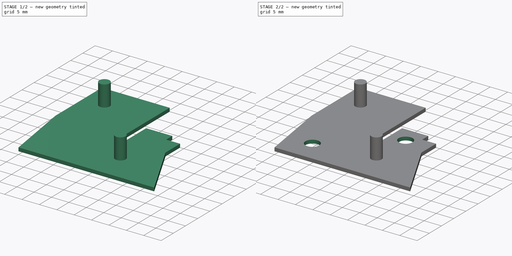
[diagram: build sequence overview — one tinted view per stage of 2, left to right]
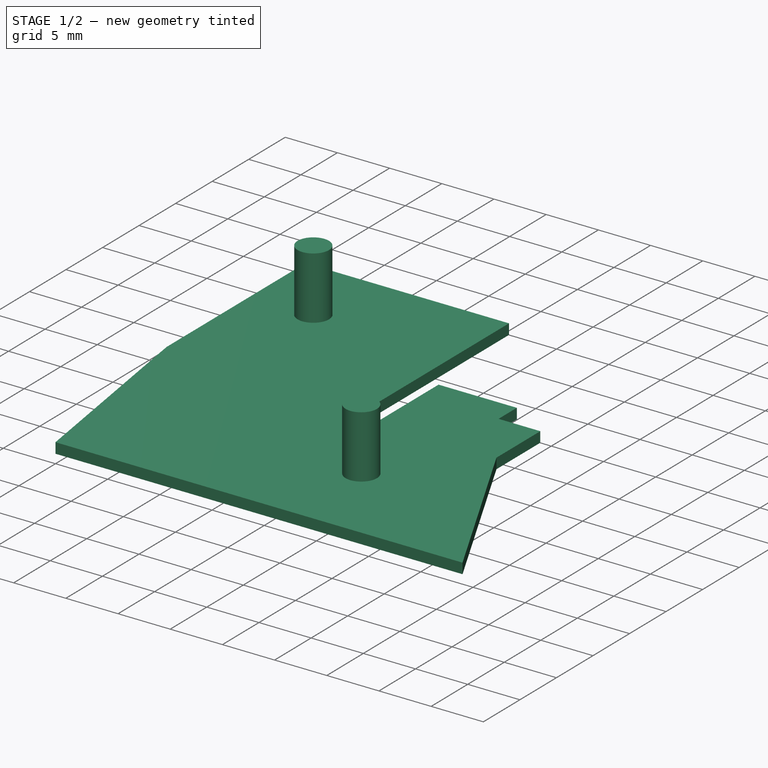
[diagram: stage 1 of 2 — iso view after this stage's code; geometry added in this stage tinted green]
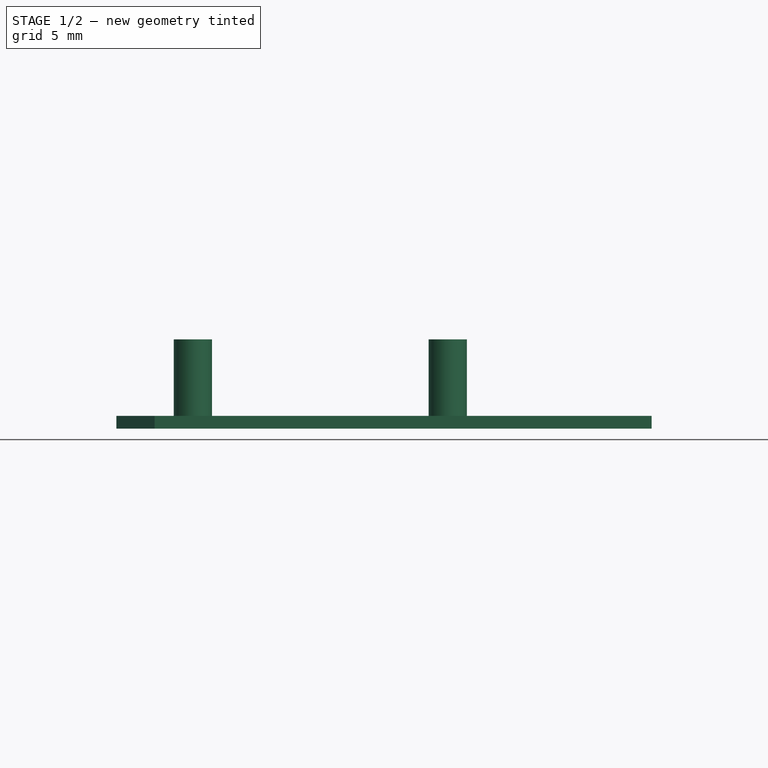
[diagram: stage 1 of 2 — front view after this stage's code; geometry added in this stage tinted green]
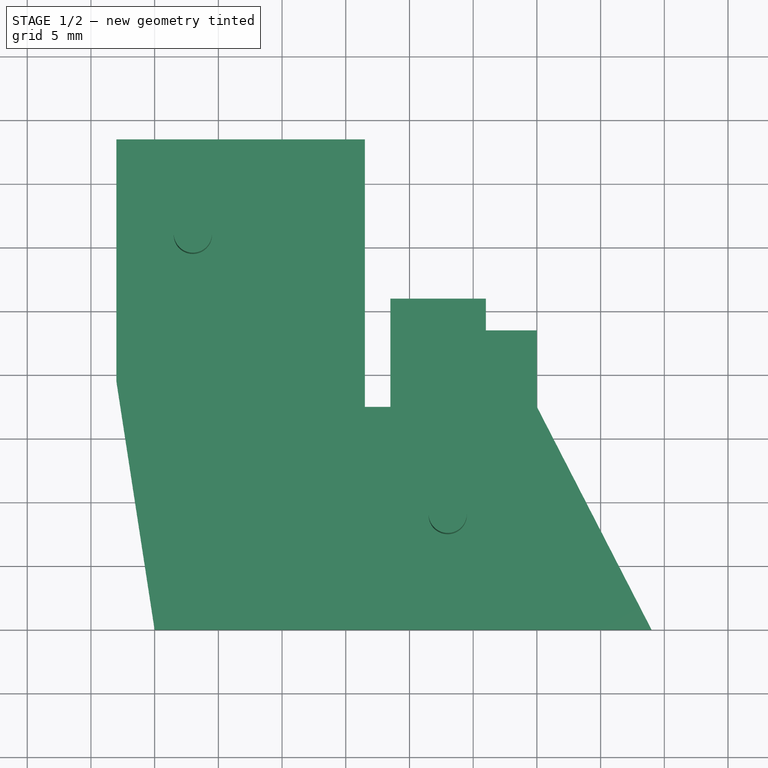
[diagram: stage 1 of 2 — top view after this stage's code; geometry added in this stage tinted green]
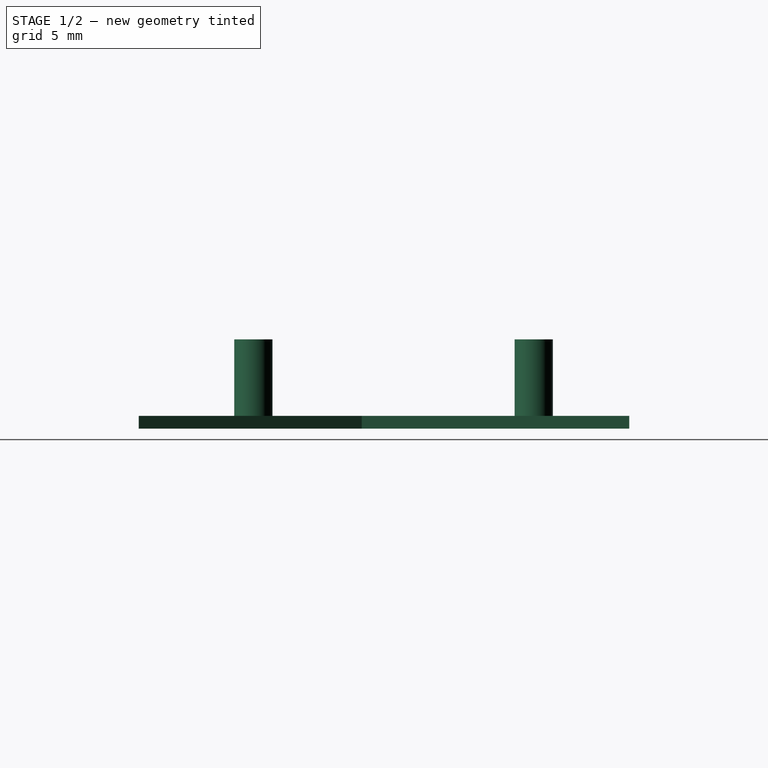
[diagram: stage 1 of 2 — right view after this stage's code; geometry added in this stage tinted green]
FCSTD DOCUMENT  (FreeCAD 0.18R16110 (Git))
Label: rollerPlateDouble
License: All rights reserved
LicenseURL: http://en.wikipedia.org/wiki/All_rights_reserved
objects: Sketcher::SketchObject×3, PartDesign::Pad×2, PartDesign::Pocket×1, PartDesign::Body×1
note: 10 computed .brp shape members not serialized (recipe doc carries the construction recipe); baked Part::Feature solids carry a one-line shape summary decoded from their .brp

FEATURE [Sketcher::SketchObject] Sketch
  MapMode = 5
  Support = -> [XY_Plane]
  sketch-geometry (12):
    g0: LineSegment StartX=4e-16 StartY=0 StartZ=0 EndX=39 EndY=0 EndZ=0
    g1: LineSegment StartX=39 StartY=0 StartZ=0 EndX=30 EndY=17.5 EndZ=0
    g2: LineSegment StartX=30 StartY=17.5 StartZ=0 EndX=30 EndY=23.5 EndZ=0
    g3: LineSegment StartX=18.5 StartY=26 StartZ=0 EndX=18.5 EndY=17.5 EndZ=0
    g4: LineSegment StartX=18.5 StartY=17.5 StartZ=0 EndX=16.5 EndY=17.5 EndZ=0
    g5: LineSegment StartX=-3 StartY=19.5 StartZ=0 EndX=4e-16 EndY=0 EndZ=0
    g6: LineSegment StartX=18.5 StartY=26 StartZ=0 EndX=26 EndY=26 EndZ=0
    g7: LineSegment StartX=26 StartY=26 StartZ=0 EndX=26 EndY=23.5 EndZ=0
    g8: LineSegment StartX=26 StartY=23.5 StartZ=0 EndX=30 EndY=23.5 EndZ=0
    g9: LineSegment StartX=-3 StartY=19.5 StartZ=0 EndX=-3 EndY=38.5 EndZ=0
    g10: LineSegment StartX=-3 StartY=38.5 StartZ=0 EndX=16.5 EndY=38.5 EndZ=0
    g11: LineSegment StartX=16.5 StartY=38.5 StartZ=0 EndX=16.5 EndY=17.5 EndZ=0
  constraints (35):
    c: Coincident(g0,g1)
    c: Coincident(g1,g2)
    c: Coincident(g3,g4)
    c: Coincident(g5,g0)
    c: Horizontal(g0)
    c: Horizontal(g4)
    c: Vertical(g2)
    c: Vertical(g3)
    c: Distance(g1,g0) = 17.5
    c: Coincident(g0,g-1)
    c: Distance(g4,g0) = 17.5
    c: Coincident(g6,g7)
    c: Coincident(g7,g8)
    c: Coincident(g2,g8)
    c: Horizontal(g8)
    c: Vertical(g7)
    c: Horizontal(g6)
    c: DistanceX(g6,g6) = 7.5
    c: Distance(g7,g0) = 23.5
    c: Coincident(g3,g6)
    c: Distance(g3,g0) = 26
    c: DistanceY(g-1,g5) = 19.5
    c: DistanceX(g0,g0) = 39
    c: DistanceX(g3,g1) = 11.5
    c: Coincident(g9,g10)
    c: Coincident(g10,g11)
    c: Vertical(g11)
    c: Vertical(g9)
    c: Horizontal(g10)
    c: Distance(g0,g10) = 38.5
    c: Coincident(g5,g9)
    c: DistanceX(g-2,g5) = -3
    c: Coincident(g4,g11)
    c: Distance(g4,g9) = 19.5
    c: DistanceX(g4,g4) = 2
FEATURE [PartDesign::Pad] Pad
  Length = 1
  Length2 = 100
  Profile = -> Sketch
  Type = 0
FEATURE [Sketcher::SketchObject] Sketch001
  MapMode = 5
  Placement = pos=(0,0,1) rot=(0,0,1;0rad)
  Support = -> [Pad]
  sketch-geometry (2):
    g0: Circle CenterX=3 CenterY=31 CenterZ=0 NormalX=0 NormalY=0 NormalZ=1 AngleXU=0 Radius=1.5
    g1: Circle CenterX=23 CenterY=9 CenterZ=0 NormalX=0 NormalY=0 NormalZ=1 AngleXU=0 Radius=1.5
  constraints (6):
    c: DistanceY(g-1,g0) = 31
    c: DistanceX(g-2,g0) = 3
    c: Radius(g0) = 1.5
    c: DistanceY(g-1,g1) = 9
    c: DistanceX(g-2,g1) = 23
    c: Radius(g1) = 1.5
FEATURE [PartDesign::Pad] Pad001
  BaseFeature = -> Pad
  Length = 6
  Length2 = 100
  Profile = -> Sketch001
  Type = 0
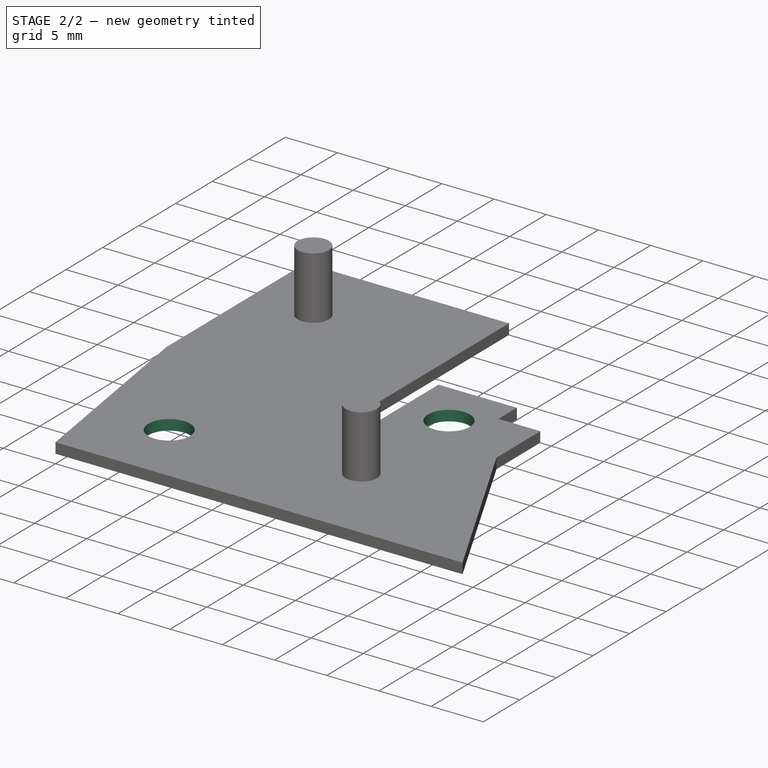
[diagram: stage 2 of 2 — iso view after this stage's code; geometry added in this stage tinted green]
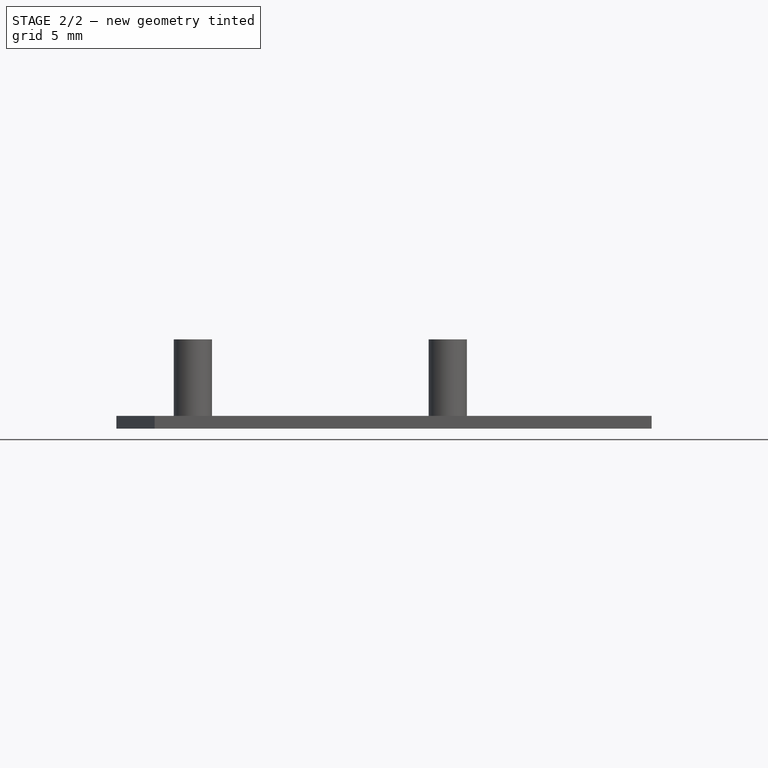
[diagram: stage 2 of 2 — front view after this stage's code; geometry added in this stage tinted green]
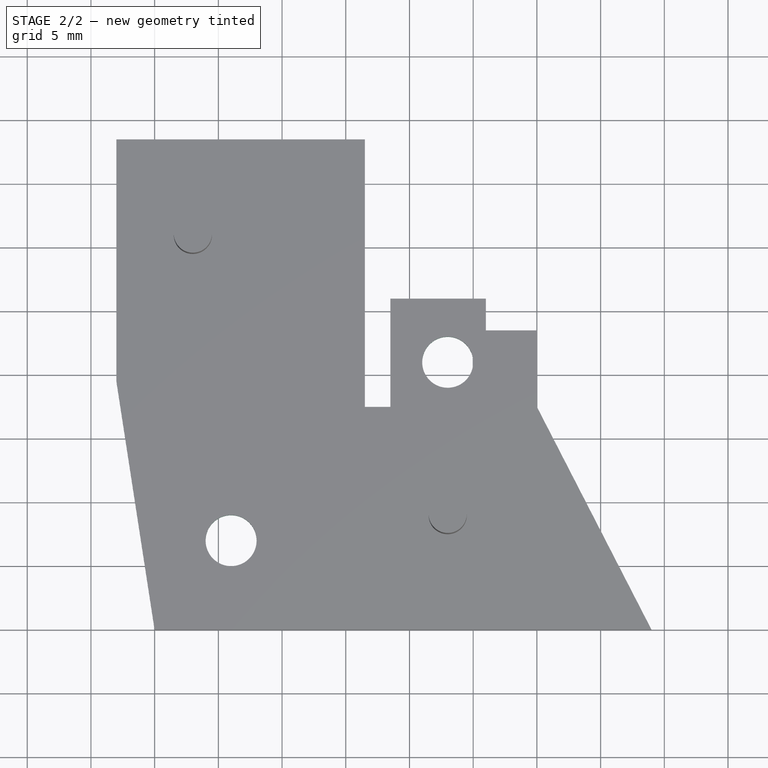
[diagram: stage 2 of 2 — top view after this stage's code; geometry added in this stage tinted green]
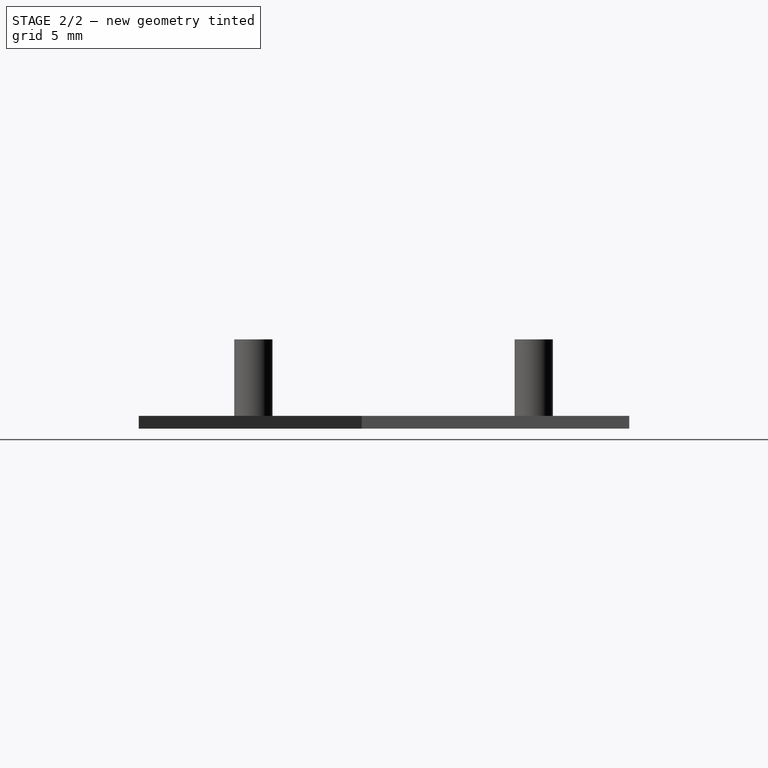
[diagram: stage 2 of 2 — right view after this stage's code; geometry added in this stage tinted green]
FEATURE [Sketcher::SketchObject] Sketch002
  MapMode = 5
  Placement = pos=(0,0,1) rot=(0,0,1;0rad)
  Support = -> [Pad001]
  sketch-geometry (2):
    g0: Circle CenterX=6 CenterY=7 CenterZ=0 NormalX=0 NormalY=0 NormalZ=1 AngleXU=0 Radius=2
    g1: Circle CenterX=23 CenterY=21 CenterZ=0 NormalX=0 NormalY=0 NormalZ=1 AngleXU=0 Radius=2
  constraints (6):
    c: Diameter(g0) = 4
    c: DistanceY(g-1,g0) = 7
    c: DistanceX(g-2,g0) = 6
    c: Diameter(g1) = 4
    c: DistanceY(g-1,g1) = 21
    c: DistanceX(g-2,g1) = 23
FEATURE [PartDesign::Pocket] Pocket
  BaseFeature = -> Pad001
  Length = 5
  Length2 = 100
  Profile = -> Sketch002
  Type = 1
FEATURE [PartDesign::Body] Body
  Group = -> [Sketch,Pad,Sketch001,Pad001,Sketch002,Pocket]
  Origin = -> Origin
  Tip = -> Pocket
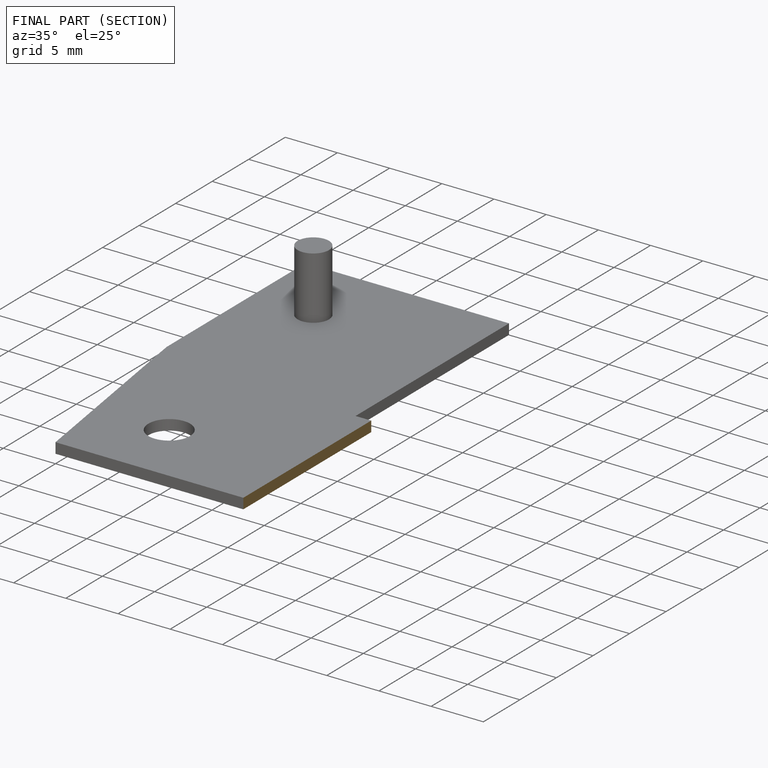
[diagram: finished part — half-section view (interior)]
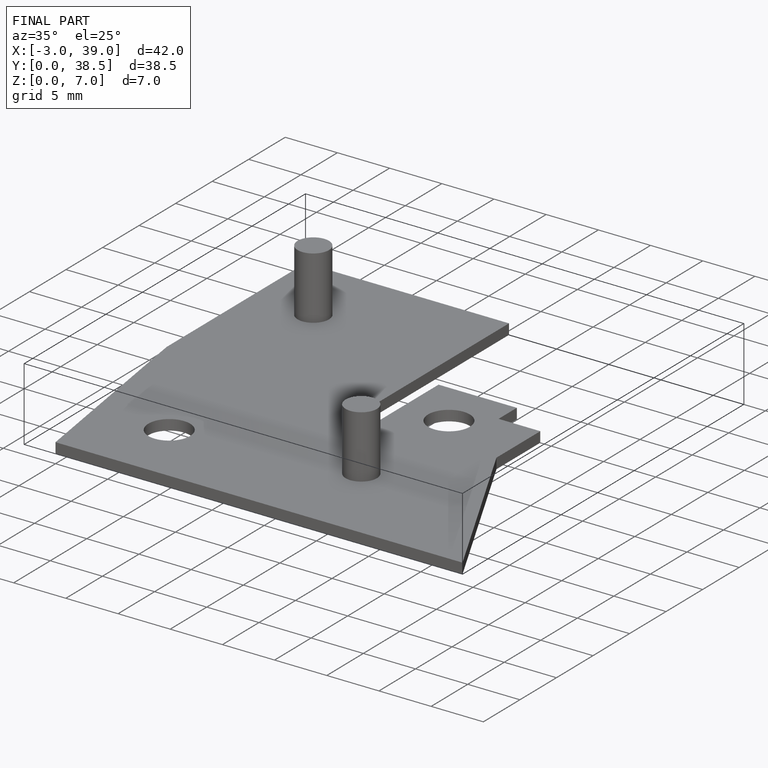
[diagram: finished part — iso view with bounding-box wireframe]
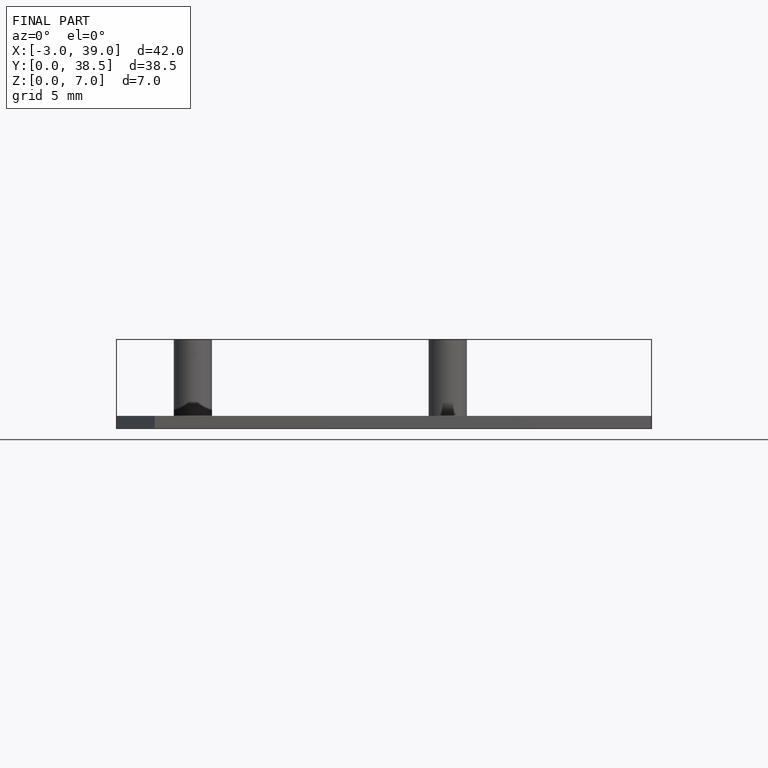
[diagram: finished part — front view with bounding-box wireframe]
